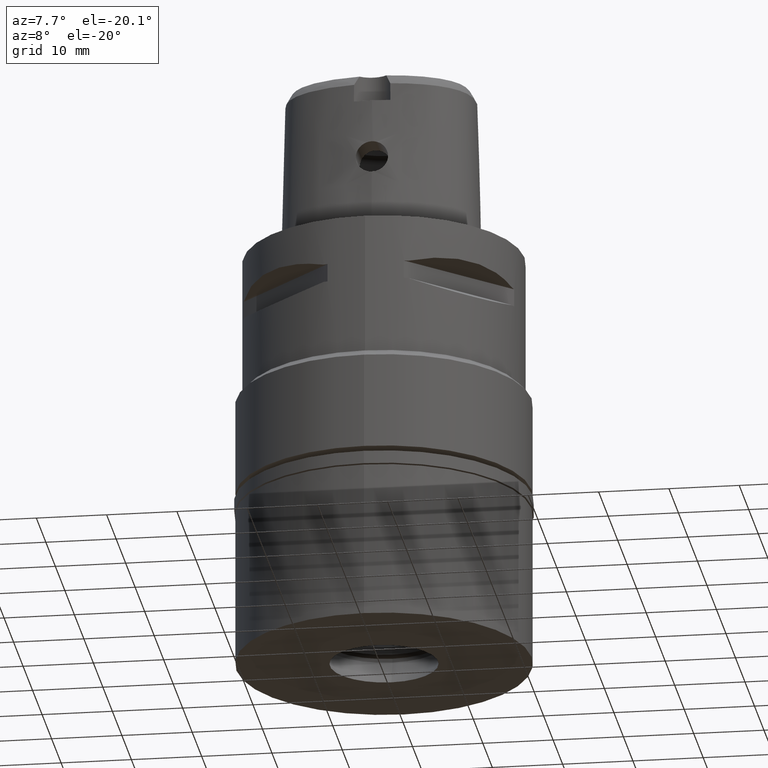
[diagram: clean part render]
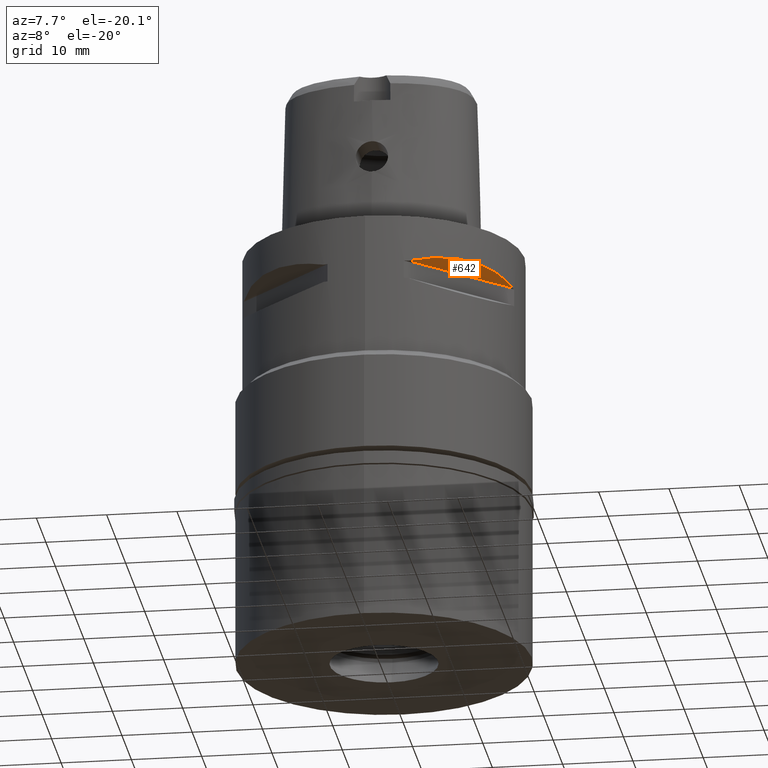
[diagram: same view with one face highlighted and labeled with its STEP entity id]
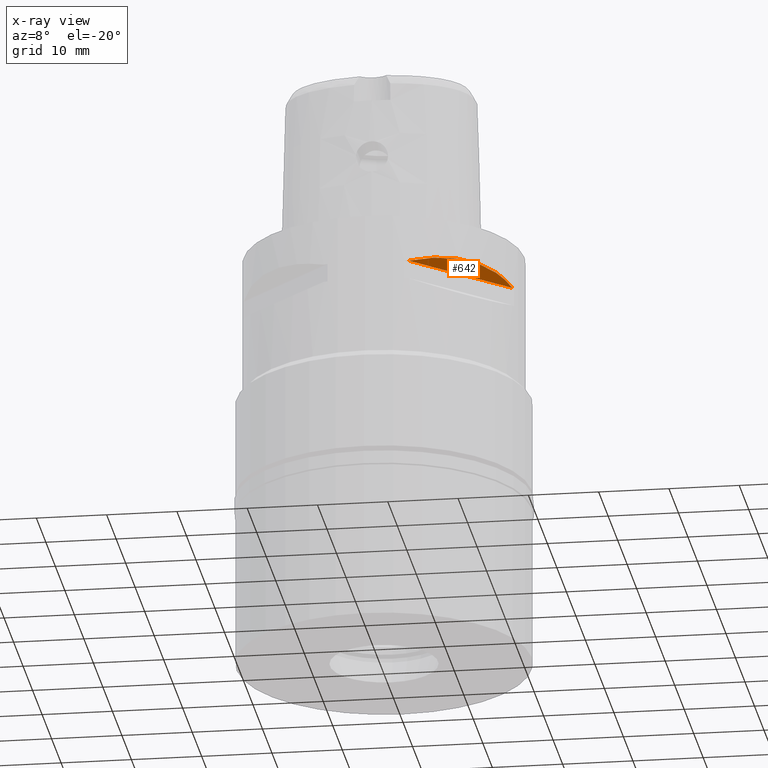
[diagram: x-ray of the same camera — body ghosted, the highlighted face saturated]
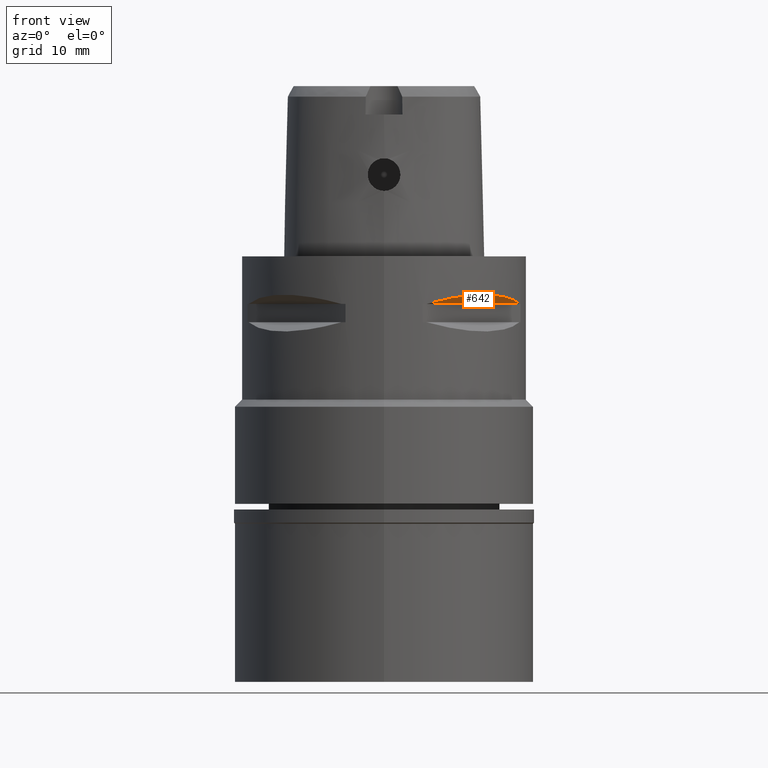
[diagram: same view with one face highlighted and labeled with its STEP entity id]
A machine part, auxiliary view. The second image highlights one B-rep face of the part: STEP entity #642.
The next image is the same camera in x-ray: the body ghosted, the highlighted face saturated — about 0% of this face is hidden behind the body in this view.
A second angle (front view) of the same face is appended — the face is thin or edge-on in the first view.
In plain terms, the highlighted planar face has unit normal (-0.3536, 0.3536, 0.866).
Its self-contained STEP definition (entity closure, byte-faithful):
#80 = VERTEX_POINT ( 'NONE', #564 ) ;
#262 = CARTESIAN_POINT ( 'NONE',  ( 24.04163056033999979, -6.363961030679000430, -4.535898384861999588 ) ) ;
#315 = PLANE ( 'NONE',  #3230 ) ;
#331 = CARTESIAN_POINT ( 'NONE',  ( 17.89930010962276441, -9.064296220445944741, -5.942778734624443615 ) ) ;
#374 = VERTEX_POINT ( 'NONE', #759 ) ;
#564 = CARTESIAN_POINT ( 'NONE',  ( 6.037787676659999825, -19.06685920573999837, -6.699999999999000089 ) ) ;
#631 = CARTESIAN_POINT ( 'NONE',  ( 11.78776565403204302, -16.23560874349816530, -5.510106948673172411 ) ) ;
#641 = FACE_OUTER_BOUND ( 'NONE', #692, .T. ) ;
#642 = ADVANCED_FACE ( 'NONE', ( #641 ), #315, .F. ) ;
#661 = DIRECTION ( 'NONE',  ( -0.3535533905933054277, 0.3535533905933054277, 0.8660254037844128394 ) ) ;
#674 = CARTESIAN_POINT ( 'NONE',  ( 18.57569612330566144, -7.588842109406050973, -6.267301168157813684 ) ) ;
#692 = EDGE_LOOP ( 'NONE', ( #4151, #3035 ) ) ;
#759 = CARTESIAN_POINT ( 'NONE',  ( 19.06685920573999837, -6.037787676659999825, -6.699999999999000089 ) ) ;
#1098 = CARTESIAN_POINT ( 'NONE',  ( 19.06685920573999837, -6.037787676659999825, -6.699999999999000089 ) ) ;
#1503 = EDGE_CURVE ( 'NONE', #80, #374, #3617, .T. ) ;
#1815 = VECTOR ( 'NONE', #2571, 1000.000000000000114 ) ;
#2069 = CARTESIAN_POINT ( 'NONE',  ( 13.03584482972204306, -15.24842641773984475, -5.401930550035745071 ) ) ;
#2571 = DIRECTION ( 'NONE',  ( 0.7071067811865474617, 0.7071067811865474617, 0.0000000000000000000 ) ) ;
#2713 = CARTESIAN_POINT ( 'NONE',  ( 7.588793634791809239, -18.57571147347032436, -6.267314691157706896 ) ) ;
#3035 = ORIENTED_EDGE ( 'NONE', *, *, #3670, .F. ) ;
#3230 = AXIS2_PLACEMENT_3D ( 'NONE', #262, #661, #3866 ) ;
#3571 = CARTESIAN_POINT ( 'NONE',  ( 15.24842641773981988, -13.03584482972207503, -5.401917027255591641 ) ) ;
#3617 = LINE ( 'NONE', #4383, #1815 ) ;
#3670 = EDGE_CURVE ( 'NONE', #80, #374, #3797, .T. ) ;
#3797 = B_SPLINE_CURVE_WITH_KNOTS ( 'NONE', 3,
 ( #3857, #2713, #4162, #631, #2069, #3571, #3991, #331, #674, #1098 ),
 .UNSPECIFIED., .F., .F.,
 ( 4, 2, 2, 2, 4 ),
 ( 0.0000000000000000000, 0.2500000000000000000, 0.5000000000000000000, 0.7500000000000000000, 1.000000000000000000 ),
 .UNSPECIFIED. ) ;
#3857 = CARTESIAN_POINT ( 'NONE',  ( 6.037787676659999825, -19.06685920573999837, -6.699999999999000089 ) ) ;
#3866 = DIRECTION ( 'NONE',  ( 0.7071067811865475727, 0.7071067811865475727, 0.0000000000000000000 ) ) ;
#3991 = CARTESIAN_POINT ( 'NONE',  ( 16.23556379045529141, -11.78782756882662319, -5.510086664173333482 ) ) ;
#4151 = ORIENTED_EDGE ( 'NONE', *, *, #1503, .T. ) ;
#4162 = CARTESIAN_POINT ( 'NONE',  ( 9.064227960973106235, -17.89933467640194564, -5.942799019124282545 ) ) ;
#4383 = CARTESIAN_POINT ( 'NONE',  ( 6.037787676657999647, -19.06685920573999837, -6.700000000000000178 ) ) ;